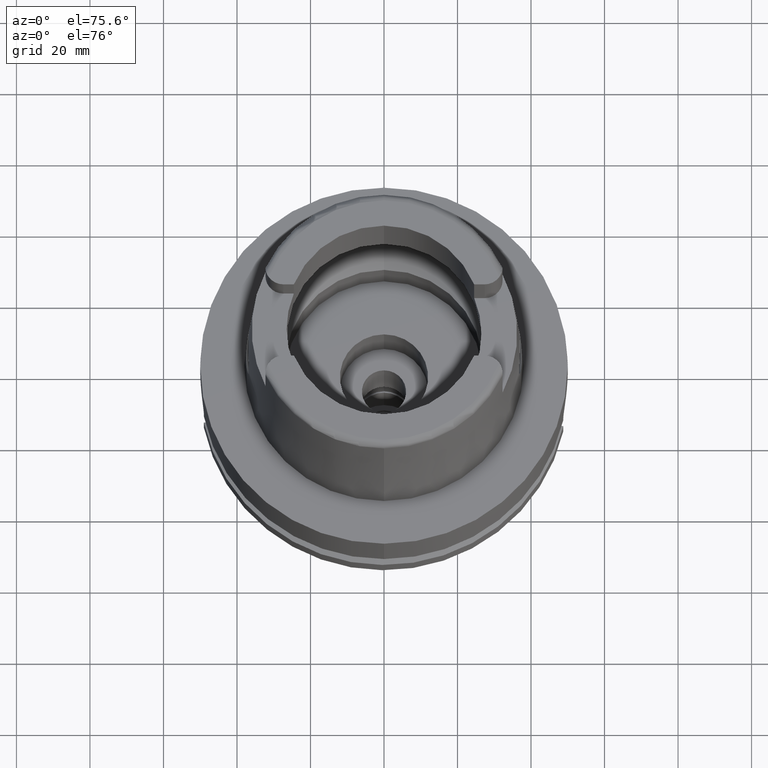
[diagram: clean part render]
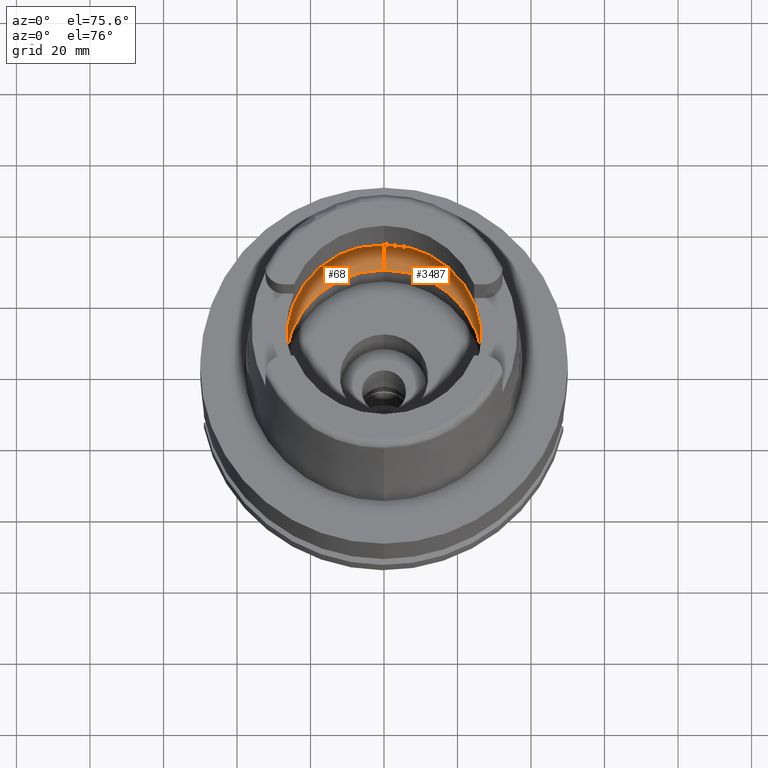
[diagram: same view with one multi-face feature highlighted, each face labeled with its STEP entity id]
A machine part, auxiliary view. The highlighted faces form ONE feature: a constant-radius fillet chain: 2 tangent blend faces with common blend radius 12 mm. The faces share edges in the B-rep.
Their STEP definitions:
[1] entity #68 (Torus):
#68 = ADVANCED_FACE ( 'NONE', ( #5553 ), #1022, .F. ) ;
#195 = CARTESIAN_POINT ( 'NONE',  ( -31.46287568614665986, 1.684656699916923683, 9.190219624986275093 ) ) ;
#445 = CARTESIAN_POINT ( 'NONE',  ( 0.0000000000000000000, 31.50000000000000000, 9.496624327025999790 ) ) ;
#576 = VERTEX_POINT ( 'NONE', #4996 ) ;
#809 = ORIENTED_EDGE ( 'NONE', *, *, #5309, .F. ) ;
#907 = CARTESIAN_POINT ( 'NONE',  ( -31.48971910754000447, 0.0000000000000000000, 9.000000000000000000 ) ) ;
#921 = DIRECTION ( 'NONE',  ( -1.000000000000000000, 0.0000000000000000000, 0.0000000000000000000 ) ) ;
#957 = EDGE_CURVE ( 'NONE', #2520, #5458, #2925, .T. ) ;
#1022 = TOROIDAL_SURFACE ( 'NONE', #3306, 19.50000000000000000, 12.00000000000000000 ) ;
#1148 = CARTESIAN_POINT ( 'NONE',  ( 0.0000000000000000000, 0.0000000000000000000, 0.04993178413029000090 ) ) ;
#1159 = CARTESIAN_POINT ( 'NONE',  ( -31.40918884336000616, 2.390158196043999705, 9.496624327025999790 ) ) ;
#1345 = CARTESIAN_POINT ( 'NONE',  ( -31.48971910754000447, -0.8697454017997489073, 8.999999999999998224 ) ) ;
#1360 = DIRECTION ( 'NONE',  ( -0.9971171061384295209, 0.07587803796965221503, 0.0000000000000000000 ) ) ;
#1419 = B_SPLINE_CURVE_WITH_KNOTS ( 'NONE', 3,
 ( #2743, #4159, #1345, #907 ),
 .UNSPECIFIED., .F., .F.,
 ( 4, 4 ),
 ( 0.0000000000000000000, 1.000000000000000000 ),
 .UNSPECIFIED. ) ;
#1688 = CARTESIAN_POINT ( 'NONE',  ( 0.0000000000000000000, -31.50000000000000000, 9.496624327025999790 ) ) ;
#1747 = EDGE_CURVE ( 'NONE', #3643, #5168, #4099, .T. ) ;
#1764 = DIRECTION ( 'NONE',  ( 0.0000000000000000000, 0.0000000000000000000, -1.000000000000000000 ) ) ;
#1769 = DIRECTION ( 'NONE',  ( 0.0000000000000000000, 0.6166666666667049990, -0.7872243785746061429 ) ) ;
#1800 = DIRECTION ( 'NONE',  ( 1.000000000000000000, 0.0000000000000000000, 0.0000000000000000000 ) ) ;
#2113 = EDGE_LOOP ( 'NONE', ( #4334, #4671, #2780, #4562, #4126, #809, #5123 ) ) ;
#2145 = CARTESIAN_POINT ( 'NONE',  ( 0.0000000000000000000, -26.89999999999999858, 0.04993178413029000090 ) ) ;
#2302 = DIRECTION ( 'NONE',  ( 0.0000000000000000000, -1.000000000000000000, 0.0000000000000000000 ) ) ;
#2334 = DIRECTION ( 'NONE',  ( 0.0000000000000000000, 0.0000000000000000000, 1.000000000000000000 ) ) ;
#2385 = EDGE_CURVE ( 'NONE', #576, #4155, #1419, .T. ) ;
#2520 = VERTEX_POINT ( 'NONE', #5315 ) ;
#2581 = CIRCLE ( 'NONE', #4069, 31.50000000000000000 ) ;
#2723 = CARTESIAN_POINT ( 'NONE',  ( 0.0000000000000000000, 0.0000000000000000000, 9.496624327025999790 ) ) ;
#2743 = CARTESIAN_POINT ( 'NONE',  ( -31.40918884336000616, -2.390158196043999705, 9.496624327025999790 ) ) ;
#2780 = ORIENTED_EDGE ( 'NONE', *, *, #3549, .F. ) ;
#2885 = EDGE_CURVE ( 'NONE', #3400, #5458, #5256, .T. ) ;
#2925 = CIRCLE ( 'NONE', #3707, 11.99999999999999822 ) ;
#2985 = DIRECTION ( 'NONE',  ( 0.0000000000000000000, 1.000000000000000000, 0.0000000000000000000 ) ) ;
#2987 = AXIS2_PLACEMENT_3D ( 'NONE', #1148, #4930, #2985 ) ;
#3223 = DIRECTION ( 'NONE',  ( 0.0000000000000000000, -0.6166666666667049990, -0.7872243785746061429 ) ) ;
#3281 = AXIS2_PLACEMENT_3D ( 'NONE', #2723, #1764, #1360 ) ;
#3306 = AXIS2_PLACEMENT_3D ( 'NONE', #3723, #2334, #6128 ) ;
#3400 = VERTEX_POINT ( 'NONE', #5723 ) ;
#3416 = EDGE_CURVE ( 'NONE', #5168, #576, #2581, .T. ) ;
#3549 = EDGE_CURVE ( 'NONE', #2520, #3643, #4962, .T. ) ;
#3636 = B_SPLINE_CURVE_WITH_KNOTS ( 'NONE', 3,
 ( #5412, #4442, #195, #1159 ),
 .UNSPECIFIED., .F., .F.,
 ( 4, 4 ),
 ( 0.0000000000000000000, 1.000000000000000000 ),
 .UNSPECIFIED. ) ;
#3643 = VERTEX_POINT ( 'NONE', #2145 ) ;
#3707 = AXIS2_PLACEMENT_3D ( 'NONE', #5996, #1800, #1769 ) ;
#3723 = CARTESIAN_POINT ( 'NONE',  ( 0.0000000000000000000, 0.0000000000000000000, 9.496624327025999790 ) ) ;
#3727 = DIRECTION ( 'NONE',  ( 0.0000000000000000000, 0.0000000000000000000, -1.000000000000000000 ) ) ;
#4069 = AXIS2_PLACEMENT_3D ( 'NONE', #5629, #3727, #2302 ) ;
#4099 = CIRCLE ( 'NONE', #5294, 11.99999999999999822 ) ;
#4126 = ORIENTED_EDGE ( 'NONE', *, *, #2885, .F. ) ;
#4155 = VERTEX_POINT ( 'NONE', #6144 ) ;
#4159 = CARTESIAN_POINT ( 'NONE',  ( -31.46287568614665986, -1.684656700028137832, 9.190219625034576012 ) ) ;
#4334 = ORIENTED_EDGE ( 'NONE', *, *, #3416, .F. ) ;
#4442 = CARTESIAN_POINT ( 'NONE',  ( -31.48971910754000447, 0.8697454016785111097, 9.000000000000001776 ) ) ;
#4562 = ORIENTED_EDGE ( 'NONE', *, *, #957, .T. ) ;
#4671 = ORIENTED_EDGE ( 'NONE', *, *, #1747, .F. ) ;
#4674 = CARTESIAN_POINT ( 'NONE',  ( 0.0000000000000000000, -19.50000000000000000, 9.496624327025999790 ) ) ;
#4930 = DIRECTION ( 'NONE',  ( 0.0000000000000000000, 0.0000000000000000000, 1.000000000000000000 ) ) ;
#4962 = CIRCLE ( 'NONE', #2987, 26.89999999999999858 ) ;
#4996 = CARTESIAN_POINT ( 'NONE',  ( -31.40918884336000616, -2.390158196043999705, 9.496624327025999790 ) ) ;
#5123 = ORIENTED_EDGE ( 'NONE', *, *, #2385, .F. ) ;
#5168 = VERTEX_POINT ( 'NONE', #1688 ) ;
#5256 = CIRCLE ( 'NONE', #3281, 31.49999999999998934 ) ;
#5294 = AXIS2_PLACEMENT_3D ( 'NONE', #4674, #921, #3223 ) ;
#5309 = EDGE_CURVE ( 'NONE', #4155, #3400, #3636, .T. ) ;
#5315 = CARTESIAN_POINT ( 'NONE',  ( 0.0000000000000000000, 26.89999999999999858, 0.04993178413029000090 ) ) ;
#5412 = CARTESIAN_POINT ( 'NONE',  ( -31.48971910754000447, 0.0000000000000000000, 9.000000000000000000 ) ) ;
#5458 = VERTEX_POINT ( 'NONE', #445 ) ;
#5553 = FACE_OUTER_BOUND ( 'NONE', #2113, .T. ) ;
#5629 = CARTESIAN_POINT ( 'NONE',  ( 0.0000000000000000000, 0.0000000000000000000, 9.496624327025999790 ) ) ;
#5723 = CARTESIAN_POINT ( 'NONE',  ( -31.40918884336000616, 2.390158196043999705, 9.496624327025999790 ) ) ;
#5996 = CARTESIAN_POINT ( 'NONE',  ( 0.0000000000000000000, 19.50000000000000000, 9.496624327025999790 ) ) ;
#6128 = DIRECTION ( 'NONE',  ( 0.0000000000000000000, 1.000000000000000000, 0.0000000000000000000 ) ) ;
#6144 = CARTESIAN_POINT ( 'NONE',  ( -31.48971910754000447, 0.0000000000000000000, 9.000000000000000000 ) ) ;
[2] entity #3487 (Torus):
#109 = EDGE_CURVE ( 'NONE', #4368, #4360, #2090, .T. ) ;
#132 = ORIENTED_EDGE ( 'NONE', *, *, #1747, .T. ) ;
#173 = VERTEX_POINT ( 'NONE', #3200 ) ;
#198 = AXIS2_PLACEMENT_3D ( 'NONE', #4271, #4766, #1947 ) ;
#445 = CARTESIAN_POINT ( 'NONE',  ( 0.0000000000000000000, 31.50000000000000000, 9.496624327025999790 ) ) ;
#544 = ORIENTED_EDGE ( 'NONE', *, *, #3108, .F. ) ;
#774 = DIRECTION ( 'NONE',  ( 0.0000000000000000000, 0.0000000000000000000, -1.000000000000000000 ) ) ;
#921 = DIRECTION ( 'NONE',  ( -1.000000000000000000, 0.0000000000000000000, 0.0000000000000000000 ) ) ;
#957 = EDGE_CURVE ( 'NONE', #2520, #5458, #2925, .T. ) ;
#985 = EDGE_CURVE ( 'NONE', #4360, #5168, #2604, .T. ) ;
#1123 = AXIS2_PLACEMENT_3D ( 'NONE', #3132, #774, #2660 ) ;
#1193 = ORIENTED_EDGE ( 'NONE', *, *, #957, .F. ) ;
#1296 = CIRCLE ( 'NONE', #198, 26.89999999999999858 ) ;
#1688 = CARTESIAN_POINT ( 'NONE',  ( 0.0000000000000000000, -31.50000000000000000, 9.496624327025999790 ) ) ;
#1747 = EDGE_CURVE ( 'NONE', #3643, #5168, #4099, .T. ) ;
#1769 = DIRECTION ( 'NONE',  ( 0.0000000000000000000, 0.6166666666667049990, -0.7872243785746061429 ) ) ;
#1800 = DIRECTION ( 'NONE',  ( 1.000000000000000000, 0.0000000000000000000, 0.0000000000000000000 ) ) ;
#1804 = CARTESIAN_POINT ( 'NONE',  ( 31.40918884336000616, -2.390158196043999705, 9.496624327025999790 ) ) ;
#1947 = DIRECTION ( 'NONE',  ( 0.0000000000000000000, -1.000000000000000000, 0.0000000000000000000 ) ) ;
#2090 = B_SPLINE_CURVE_WITH_KNOTS ( 'NONE', 3,
 ( #3261, #5522, #2298, #1804 ),
 .UNSPECIFIED., .F., .F.,
 ( 4, 4 ),
 ( 0.0000000000000000000, 1.000000000000000000 ),
 .UNSPECIFIED. ) ;
#2145 = CARTESIAN_POINT ( 'NONE',  ( 0.0000000000000000000, -26.89999999999999858, 0.04993178413029000090 ) ) ;
#2255 = B_SPLINE_CURVE_WITH_KNOTS ( 'NONE', 3,
 ( #5019, #4985, #2628, #3040 ),
 .UNSPECIFIED., .F., .F.,
 ( 4, 4 ),
 ( 0.0000000000000000000, 1.000000000000000000 ),
 .UNSPECIFIED. ) ;
#2298 = CARTESIAN_POINT ( 'NONE',  ( 31.46287568614665986, -1.684656699965325632, 9.190219625007294724 ) ) ;
#2448 = EDGE_LOOP ( 'NONE', ( #4031, #5696, #1193, #544, #132, #4253, #3361 ) ) ;
#2520 = VERTEX_POINT ( 'NONE', #5315 ) ;
#2604 = CIRCLE ( 'NONE', #1123, 31.49999999999998934 ) ;
#2628 = CARTESIAN_POINT ( 'NONE',  ( 31.48971910753999026, 0.8697454017787721314, 9.000000000000001776 ) ) ;
#2660 = DIRECTION ( 'NONE',  ( 0.9971171061384295209, -0.07587803796965221503, 0.0000000000000000000 ) ) ;
#2925 = CIRCLE ( 'NONE', #3707, 11.99999999999999822 ) ;
#3040 = CARTESIAN_POINT ( 'NONE',  ( 31.48971910754000447, 0.0000000000000000000, 9.000000000000000000 ) ) ;
#3108 = EDGE_CURVE ( 'NONE', #3643, #2520, #1296, .T. ) ;
#3132 = CARTESIAN_POINT ( 'NONE',  ( 0.0000000000000000000, 0.0000000000000000000, 9.496624327025999790 ) ) ;
#3200 = CARTESIAN_POINT ( 'NONE',  ( 31.40918884336000616, 2.390158196043999705, 9.496624327025999790 ) ) ;
#3223 = DIRECTION ( 'NONE',  ( 0.0000000000000000000, -0.6166666666667049990, -0.7872243785746061429 ) ) ;
#3240 = CARTESIAN_POINT ( 'NONE',  ( 0.0000000000000000000, 0.0000000000000000000, 9.496624327025999790 ) ) ;
#3261 = CARTESIAN_POINT ( 'NONE',  ( 31.48971910754000447, 0.0000000000000000000, 9.000000000000000000 ) ) ;
#3297 = DIRECTION ( 'NONE',  ( 0.0000000000000000000, 0.0000000000000000000, 1.000000000000000000 ) ) ;
#3310 = CARTESIAN_POINT ( 'NONE',  ( 31.48971910754000447, 0.0000000000000000000, 9.000000000000000000 ) ) ;
#3319 = CIRCLE ( 'NONE', #4898, 31.50000000000000000 ) ;
#3361 = ORIENTED_EDGE ( 'NONE', *, *, #109, .F. ) ;
#3487 = ADVANCED_FACE ( 'NONE', ( #5593 ), #4867, .F. ) ;
#3643 = VERTEX_POINT ( 'NONE', #2145 ) ;
#3707 = AXIS2_PLACEMENT_3D ( 'NONE', #5996, #1800, #1769 ) ;
#4024 = EDGE_CURVE ( 'NONE', #173, #4368, #2255, .T. ) ;
#4031 = ORIENTED_EDGE ( 'NONE', *, *, #4024, .F. ) ;
#4099 = CIRCLE ( 'NONE', #5294, 11.99999999999999822 ) ;
#4253 = ORIENTED_EDGE ( 'NONE', *, *, #985, .F. ) ;
#4271 = CARTESIAN_POINT ( 'NONE',  ( 0.0000000000000000000, 0.0000000000000000000, 0.04993178413029000090 ) ) ;
#4360 = VERTEX_POINT ( 'NONE', #5670 ) ;
#4368 = VERTEX_POINT ( 'NONE', #3310 ) ;
#4491 = DIRECTION ( 'NONE',  ( 0.0000000000000000000, 1.000000000000000000, 0.0000000000000000000 ) ) ;
#4674 = CARTESIAN_POINT ( 'NONE',  ( 0.0000000000000000000, -19.50000000000000000, 9.496624327025999790 ) ) ;
#4766 = DIRECTION ( 'NONE',  ( 0.0000000000000000000, 0.0000000000000000000, 1.000000000000000000 ) ) ;
#4767 = AXIS2_PLACEMENT_3D ( 'NONE', #3240, #3297, #5127 ) ;
#4867 = TOROIDAL_SURFACE ( 'NONE', #4767, 19.50000000000000000, 12.00000000000000000 ) ;
#4898 = AXIS2_PLACEMENT_3D ( 'NONE', #5340, #5821, #4491 ) ;
#4985 = CARTESIAN_POINT ( 'NONE',  ( 31.46287568614665986, 1.684656700008886121, 9.190219625026216477 ) ) ;
#5019 = CARTESIAN_POINT ( 'NONE',  ( 31.40918884336000616, 2.390158196043999705, 9.496624327025999790 ) ) ;
#5127 = DIRECTION ( 'NONE',  ( 0.0000000000000000000, 1.000000000000000000, 0.0000000000000000000 ) ) ;
#5168 = VERTEX_POINT ( 'NONE', #1688 ) ;
#5294 = AXIS2_PLACEMENT_3D ( 'NONE', #4674, #921, #3223 ) ;
#5315 = CARTESIAN_POINT ( 'NONE',  ( 0.0000000000000000000, 26.89999999999999858, 0.04993178413029000090 ) ) ;
#5340 = CARTESIAN_POINT ( 'NONE',  ( 0.0000000000000000000, 0.0000000000000000000, 9.496624327025999790 ) ) ;
#5458 = VERTEX_POINT ( 'NONE', #445 ) ;
#5522 = CARTESIAN_POINT ( 'NONE',  ( 31.48971910753999026, -0.8697454017312684638, 8.999999999999998224 ) ) ;
#5593 = FACE_OUTER_BOUND ( 'NONE', #2448, .T. ) ;
#5670 = CARTESIAN_POINT ( 'NONE',  ( 31.40918884336000616, -2.390158196043999705, 9.496624327025999790 ) ) ;
#5696 = ORIENTED_EDGE ( 'NONE', *, *, #5929, .F. ) ;
#5821 = DIRECTION ( 'NONE',  ( 0.0000000000000000000, 0.0000000000000000000, -1.000000000000000000 ) ) ;
#5929 = EDGE_CURVE ( 'NONE', #5458, #173, #3319, .T. ) ;
#5996 = CARTESIAN_POINT ( 'NONE',  ( 0.0000000000000000000, 19.50000000000000000, 9.496624327025999790 ) ) ;